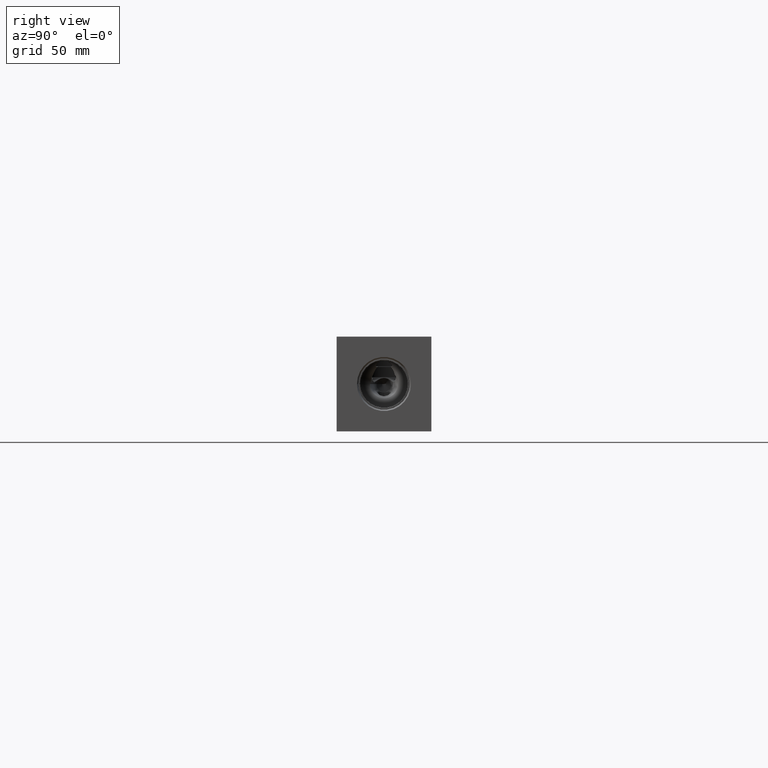
[diagram: clean part render]
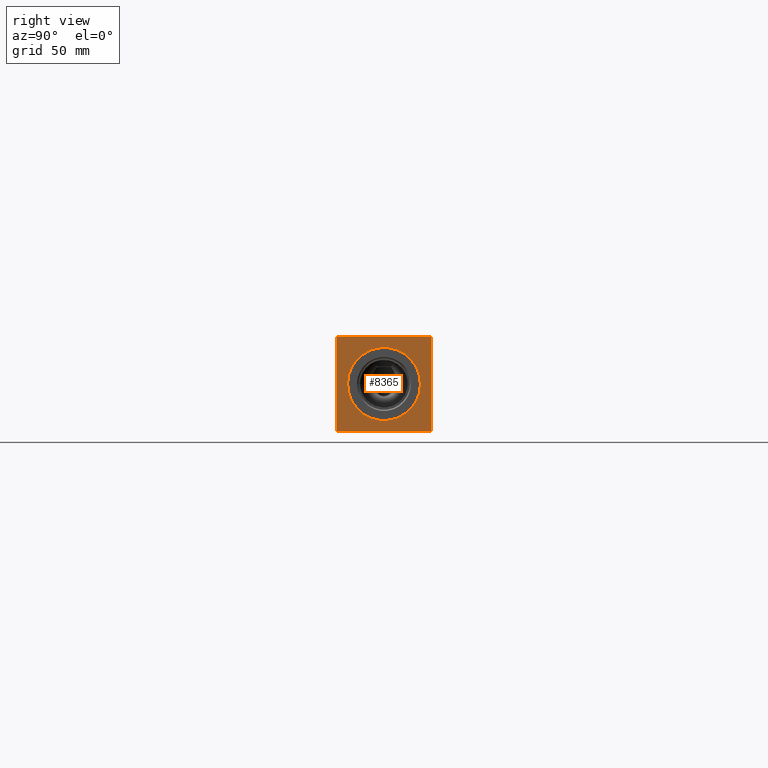
[diagram: same view with one face highlighted and labeled with its STEP entity id]
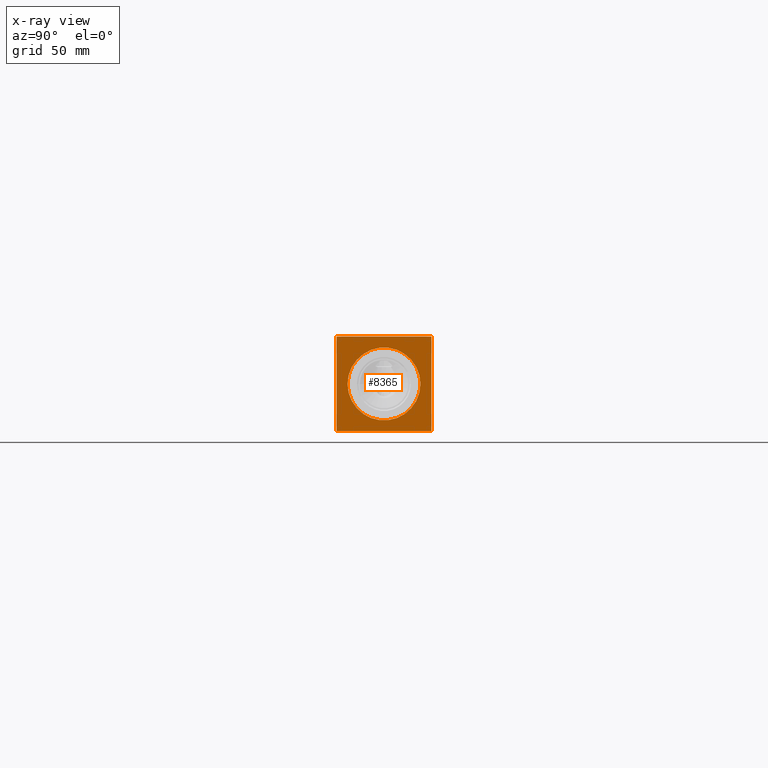
[diagram: x-ray of the same camera — body ghosted, the highlighted face saturated]
A machine part, right view. The second image highlights one B-rep face of the part: STEP entity #8365.
The next image is the same camera in x-ray: the body ghosted, the highlighted face saturated — about 0% of this face is hidden behind the body in this view.
In plain terms, the highlighted planar face has unit normal (1, 0, 0).
Its self-contained STEP definition (entity closure, byte-faithful):
#287=CIRCLE('',#8856,29.2862);
#288=CIRCLE('',#8857,29.2862);
#363=FACE_BOUND('',#1649,.T.);
#1159=FACE_OUTER_BOUND('',#1648,.T.);
#1648=EDGE_LOOP('',(#7387,#7388,#7389,#7390));
#1649=EDGE_LOOP('',(#7391,#7392));
#1907=LINE('',#12906,#2637);
#2385=LINE('',#14716,#3115);
#2386=LINE('',#14719,#3116);
#2387=LINE('',#14720,#3117);
#2637=VECTOR('',#9261,10.);
#3115=VECTOR('',#10633,10.);
#3116=VECTOR('',#10636,10.);
#3117=VECTOR('',#10637,10.);
#3422=VERTEX_POINT('',#12903);
#3423=VERTEX_POINT('',#12905);
#3876=VERTEX_POINT('',#14646);
#3877=VERTEX_POINT('',#14647);
#3898=VERTEX_POINT('',#14714);
#3899=VERTEX_POINT('',#14718);
#4354=EDGE_CURVE('',#3422,#3423,#1907,.T.);
#5033=EDGE_CURVE('',#3876,#3877,#287,.T.);
#5034=EDGE_CURVE('',#3877,#3876,#288,.T.);
#5067=EDGE_CURVE('',#3898,#3423,#2385,.T.);
#5068=EDGE_CURVE('',#3899,#3898,#2386,.T.);
#5069=EDGE_CURVE('',#3899,#3422,#2387,.T.);
#7387=ORIENTED_EDGE('',*,*,#5068,.T.);
#7388=ORIENTED_EDGE('',*,*,#5067,.T.);
#7389=ORIENTED_EDGE('',*,*,#4354,.F.);
#7390=ORIENTED_EDGE('',*,*,#5069,.F.);
#7391=ORIENTED_EDGE('',*,*,#5033,.T.);
#7392=ORIENTED_EDGE('',*,*,#5034,.T.);
#7630=PLANE('',#8889);
#8365=ADVANCED_FACE('',(#1159,#363),#7630,.T.);
#8856=AXIS2_PLACEMENT_3D('',#14648,#10553,#10554);
#8857=AXIS2_PLACEMENT_3D('',#14649,#10555,#10556);
#8889=AXIS2_PLACEMENT_3D('',#14717,#10634,#10635);
#9261=DIRECTION('',(0.,1.,0.));
#10553=DIRECTION('center_axis',(-1.,0.,0.));
#10554=DIRECTION('ref_axis',(0.,1.,0.));
#10555=DIRECTION('center_axis',(-1.,0.,0.));
#10556=DIRECTION('ref_axis',(0.,1.,0.));
#10633=DIRECTION('',(0.,0.,1.));
#10634=DIRECTION('center_axis',(1.,0.,0.));
#10635=DIRECTION('ref_axis',(0.,1.,0.));
#10636=DIRECTION('',(0.,1.,0.));
#10637=DIRECTION('',(0.,0.,1.));
#12903=CARTESIAN_POINT('',(577.85,0.,76.2));
#12905=CARTESIAN_POINT('',(577.85,76.2,76.2));
#12906=CARTESIAN_POINT('',(577.85,0.,76.2));
#14646=CARTESIAN_POINT('',(577.85,67.3862,38.1));
#14647=CARTESIAN_POINT('',(577.85,8.8138,38.1));
#14648=CARTESIAN_POINT('Origin',(577.85,38.1,38.1));
#14649=CARTESIAN_POINT('Origin',(577.85,38.1,38.1));
#14714=CARTESIAN_POINT('',(577.85,76.2,0.));
#14716=CARTESIAN_POINT('',(577.85,76.2,0.));
#14717=CARTESIAN_POINT('Origin',(577.85,0.,0.));
#14718=CARTESIAN_POINT('',(577.85,0.,0.));
#14719=CARTESIAN_POINT('',(577.85,0.,0.));
#14720=CARTESIAN_POINT('',(577.85,0.,0.));